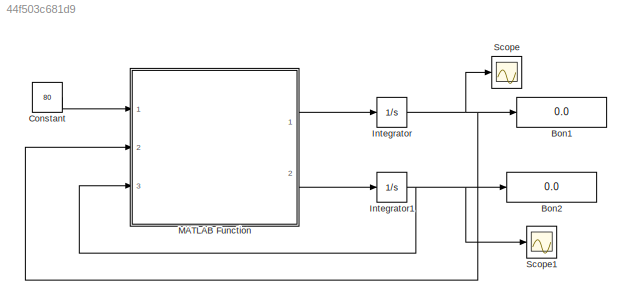
MODEL slx_44f503c681d9
KIND model
CONFIG AbsTol = auto
CONFIG EnableMultiTasking = off
CONFIG FixedStep = 0.01
CONFIG MaxStep = auto
CONFIG MinStep = auto
CONFIG RelTol = 1e-3
CONFIG SampleTimeConstraint = Unconstrained
CONFIG Solver = FixedStepAuto
CONFIG SolverName = FixedStepAuto
CONFIG StartTime = 0.0
CONFIG StopTime = 50
BLOCK [Display] Bon1
  Decimation = 1
  Ports = [1]
BLOCK [Display] Bon2
  Decimation = 1
  Ports = [1]
BLOCK [Constant] Constant
  Value = 80
BLOCK [Integrator] Integrator
  InitialCondition = 0.01
  Ports = [1, 1]
BLOCK [Integrator] Integrator1
  InitialCondition = 0.01
  Ports = [1, 1]
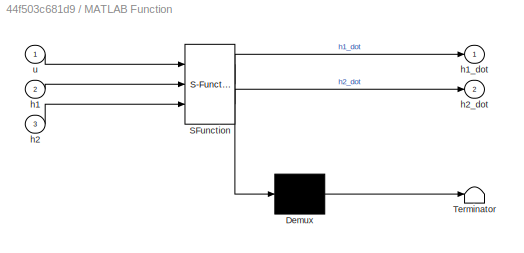
BLOCK [SubSystem] MATLAB Function
  ErrorFcn = Stateflow.Translate.translate
  PermitHierarchicalResolution = ExplicitOnly
  Ports = [3, 2]
  RequestExecContextInheritance = off
  SFBlockType = MATLAB Function
  TreatAsAtomicUnit = on
  Variant = off
BLOCK [Demux] MATLAB Function/ Demux 
  Outputs = 1
  Ports = [1, 1]
BLOCK [S-Function] MATLAB Function/ SFunction 
  EnableBusSupport = on
  FunctionName = sf_sfun
  PortCounts = [3 3]
  Ports = [3, 3]
  SFcnIsStateOwnerBlock = off
  SFunctionDeploymentMode = off
  Tag = Stateflow S-Function baicuoiki 2
BLOCK [Terminator] MATLAB Function/ Terminator 
BLOCK [Inport] MATLAB Function/h1
  IconDisplay = Port number
  Port = 2
BLOCK [Outport] MATLAB Function/h1_dot
  IconDisplay = Port number
BLOCK [Inport] MATLAB Function/h2
  IconDisplay = Port number
  Port = 3
BLOCK [Outport] MATLAB Function/h2_dot
  IconDisplay = Port number
  Port = 2
BLOCK [Inport] MATLAB Function/u
  IconDisplay = Port number
BLOCK [Scope] Scope
  NumInputPorts = 1
  Ports = [1]
  ScopeSpecificationString = Simulink.scopes.TimeScopeBlockCfg('CurrentConfiguration', extmgr.ConfigurationSet(extmgr.Configuration('Core','General UI',true),extmgr.Configuration('Core','Source UI',true),extmgr.Configuration('Sources','WiredSimulink',true),extmgr.Configuration('Visuals','Time Domain',true,'SerializedDisplays',{struct('MinYLimReal','-98.35658','MaxYLimReal','885.30922','YLabelReal','','MinYLimMag','0.00000','M...<+1340ch>
BLOCK [Scope] Scope1
  NumInputPorts = 1
  Ports = [1]
  ScopeSpecificationString = Simulink.scopes.TimeScopeBlockCfg('CurrentConfiguration', extmgr.ConfigurationSet(extmgr.Configuration('Core','General UI',true),extmgr.Configuration('Core','Source UI',true),extmgr.Configuration('Sources','WiredSimulink',true,'DataLoggingVariableName','ScopeData1'),extmgr.Configuration('Visuals','Time Domain',true),extmgr.Configuration('Tools','Plot Navigation',true),extmgr.Configuration('Tools',...<+40ch>
LINE Constant:1 -> MATLAB Function:1
NET Integrator1:1 -> Bon2:1, MATLAB Function:3, Scope1:1
NET Integrator:1 -> Bon1:1, MATLAB Function:2, Scope:1
LINE MATLAB Function:1 -> Integrator:1
LINE MATLAB Function:2 -> Integrator1:1
note: NET lines group one-source signal fan-out (src -> all destinations, sorted); 1:1 wires keep LINE
CHART MATLAB Function states=1 transitions=1
  STATE_LABEL 'eML_blk_kernel()'
  STATE_LABEL 'SCRIPT:\nfunction [h1_dot, h2_dot] = fcn(u,h1,h2)\n\n%#codegen\nA1 = 175;      % cm^2\nA2 = 154;      % cm^2\nb1 = 1.1;      % cm^2\nb2 = 1.0;      % cm^2\nK = 41;        % cm^3/s/V\nC = 0.6;\ng = 981;       % cm/s^2\nh1_dot=(K*u-sign(h1-h2)*b1*C*sqrt(2*g*abs(h1-h2)))/A1;\nh2_dot=(sign(h1-h2)*b1*C*sqrt(2*g*abs(h1-h2))-b2*C*sqrt(2*g*h2))/A2;'
